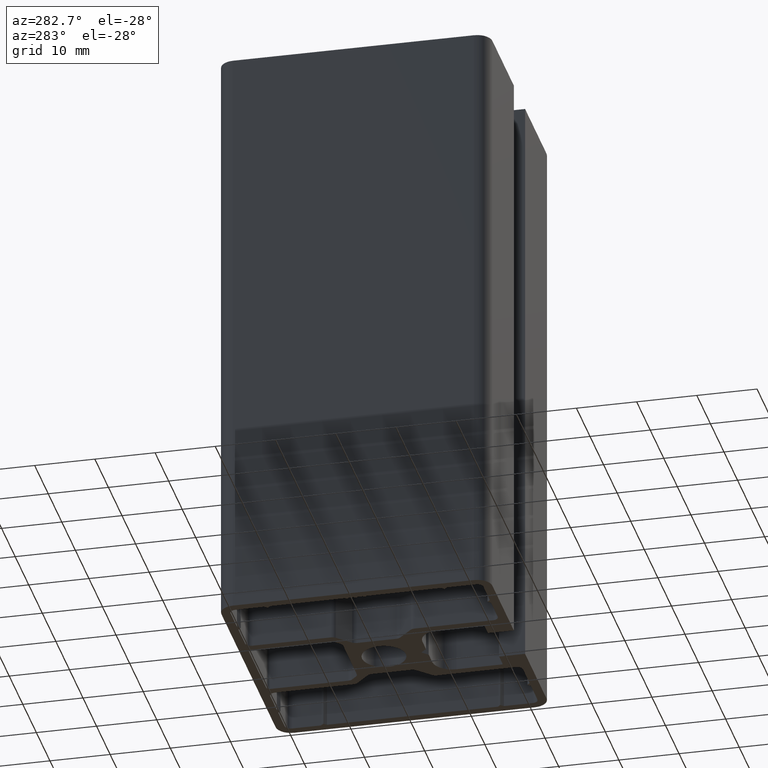
[diagram: clean part render]
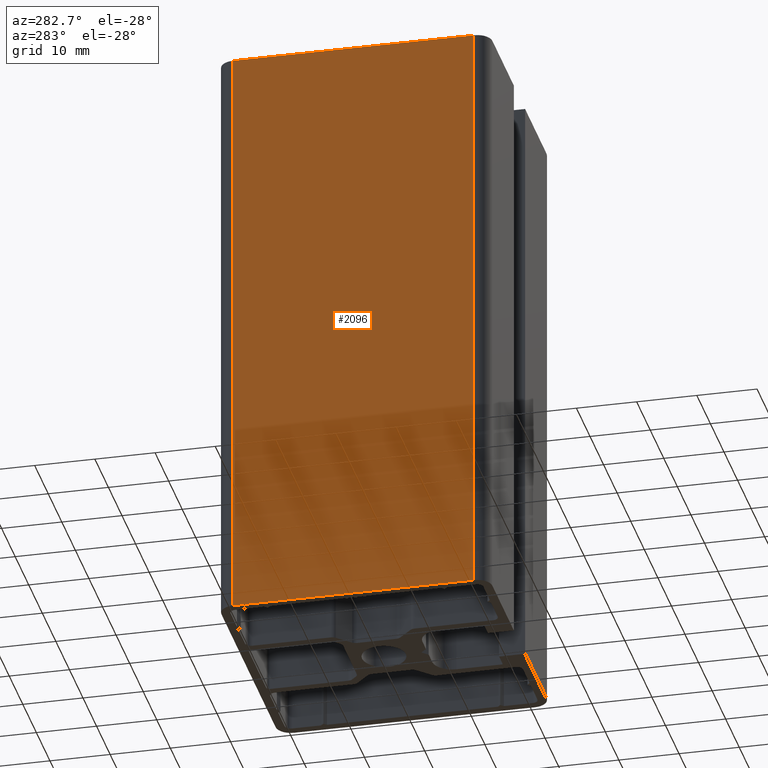
[diagram: same view with one face highlighted and labeled with its STEP entity id]
A machine part, auxiliary view. The second image highlights one B-rep face of the part: STEP entity #2096.
In plain terms, the highlighted planar face has unit normal (-1, 0, 0).
Its self-contained STEP definition (entity closure, byte-faithful):
#236=FACE_OUTER_BOUND('',#345,.T.);
#345=EDGE_LOOP('',(#1810,#1811,#1812,#1813));
#571=LINE('',#3454,#800);
#576=LINE('',#3468,#805);
#577=LINE('',#3472,#806);
#578=LINE('',#3473,#807);
#800=VECTOR('',#2834,40.);
#805=VECTOR('',#2849,100.);
#806=VECTOR('',#2854,100.);
#807=VECTOR('',#2855,40.);
#1007=VERTEX_POINT('',#3451);
#1008=VERTEX_POINT('',#3453);
#1012=VERTEX_POINT('',#3467);
#1013=VERTEX_POINT('',#3471);
#1304=EDGE_CURVE('',#1008,#1007,#571,.T.);
#1311=EDGE_CURVE('',#1012,#1008,#576,.T.);
#1313=EDGE_CURVE('',#1013,#1007,#577,.T.);
#1314=EDGE_CURVE('',#1012,#1013,#578,.T.);
#1810=ORIENTED_EDGE('',*,*,#1304,.T.);
#1811=ORIENTED_EDGE('',*,*,#1313,.F.);
#1812=ORIENTED_EDGE('',*,*,#1314,.F.);
#1813=ORIENTED_EDGE('',*,*,#1311,.T.);
#1994=PLANE('',#2276);
#2096=ADVANCED_FACE('',(#236),#1994,.T.);
#2276=AXIS2_PLACEMENT_3D('',#3470,#2852,#2853);
#2834=DIRECTION('',(2.22044604925031E-16,1.,0.));
#2849=DIRECTION('',(0.,0.,1.));
#2852=DIRECTION('center_axis',(-1.,2.22044604925031E-16,0.));
#2853=DIRECTION('ref_axis',(-3.5527136788005E-16,-1.,0.));
#2854=DIRECTION('',(0.,0.,1.));
#2855=DIRECTION('',(2.22044604925031E-16,1.,0.));
#3451=CARTESIAN_POINT('',(-22.5,20.,100.));
#3453=CARTESIAN_POINT('',(-22.5,-20.,100.));
#3454=CARTESIAN_POINT('',(-22.5,10.,100.));
#3467=CARTESIAN_POINT('',(-22.5,-20.,0.));
#3468=CARTESIAN_POINT('',(-22.5,-20.,0.));
#3470=CARTESIAN_POINT('Origin',(-22.5,20.,0.));
#3471=CARTESIAN_POINT('',(-22.5,20.,0.));
#3472=CARTESIAN_POINT('',(-22.5,20.,0.));
#3473=CARTESIAN_POINT('',(-22.5,10.,0.));